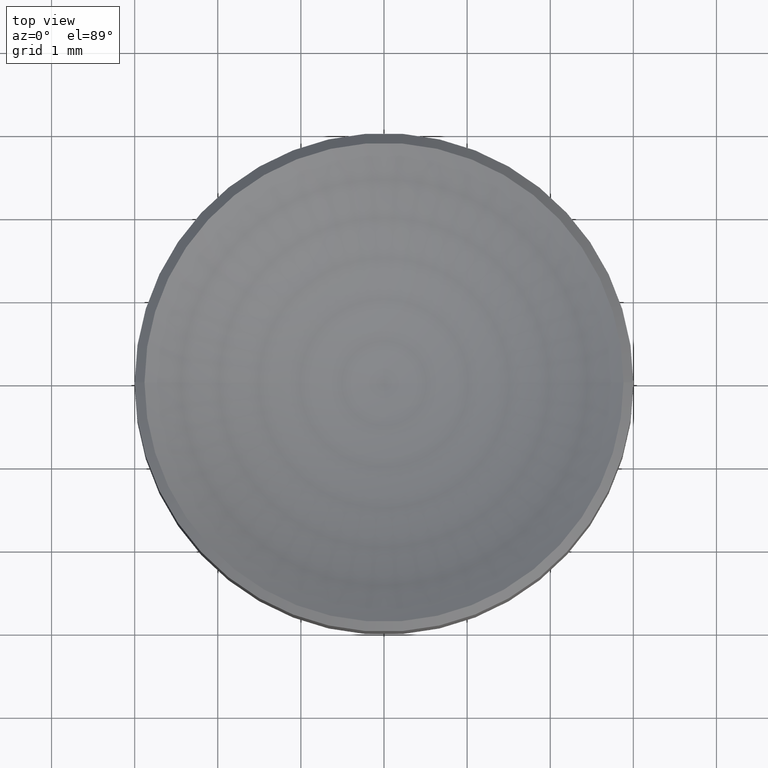
[diagram: clean part render]
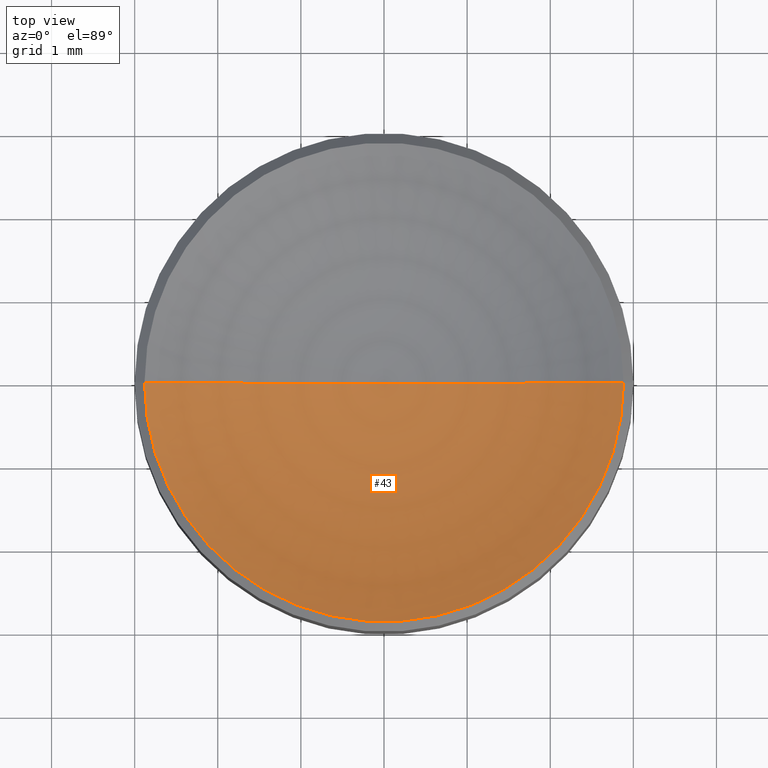
[diagram: same view with one face highlighted and labeled with its STEP entity id]
A machine part, top view. The second image highlights one B-rep face of the part: STEP entity #43.
In plain terms, the highlighted toroidal blend (fillet) surface has major radius 0.0008 mm and minor (blend) radius 5.17 mm.
Its self-contained STEP definition (entity closure, byte-faithful):
#5 = DIRECTION ( 'NONE',  ( -1.000000000000000000, 1.224646799147353207E-16, 0.000000000000000000 ) ) ;
#8 = ORIENTED_EDGE ( 'NONE', *, *, #196, .T. ) ;
#11 = ORIENTED_EDGE ( 'NONE', *, *, #208, .F. ) ;
#19 = CARTESIAN_POINT ( 'NONE',  ( 0.000000000000000000, 0.000000000000000000, 6.669999938107513238 ) ) ;
#23 = CIRCLE ( 'NONE', #160, 5.169999999999999929 ) ;
#43 = ADVANCED_FACE ( 'NONE', ( #62 ), #199, .F. ) ;
#55 = CARTESIAN_POINT ( 'NONE',  ( 0.000000000000000000, 0.000000000000000000, 2.378202045785374974 ) ) ;
#62 = FACE_OUTER_BOUND ( 'NONE', #166, .T. ) ;
#74 = CARTESIAN_POINT ( 'NONE',  ( 2.881797954214630142, 0.000000000000000000, 2.378202045785374974 ) ) ;
#78 = EDGE_CURVE ( 'NONE', #98, #124, #151, .T. ) ;
#79 = AXIS2_PLACEMENT_3D ( 'NONE', #19, #96, #101 ) ;
#80 = AXIS2_PLACEMENT_3D ( 'NONE', #55, #241, #258 ) ;
#86 = VERTEX_POINT ( 'NONE', #229 ) ;
#96 = DIRECTION ( 'NONE',  ( -0.000000000000000000, -0.000000000000000000, 1.000000000000000000 ) ) ;
#98 = VERTEX_POINT ( 'NONE', #219 ) ;
#101 = DIRECTION ( 'NONE',  ( 1.000000000000000000, 0.000000000000000000, 0.000000000000000000 ) ) ;
#115 = CARTESIAN_POINT ( 'NONE',  ( 0.0007999801944051383035, -9.796931844595300665E-20, 6.669999938107513238 ) ) ;
#118 = DIRECTION ( 'NONE',  ( 0.000000000000000000, 0.000000000000000000, -1.000000000000000000 ) ) ;
#124 = VERTEX_POINT ( 'NONE', #74 ) ;
#151 = CIRCLE ( 'NONE', #80, 2.881797954214628810 ) ;
#152 = DIRECTION ( 'NONE',  ( 1.224646799147353207E-16, 1.000000000000000000, 0.000000000000000000 ) ) ;
#160 = AXIS2_PLACEMENT_3D ( 'NONE', #115, #152, #5 ) ;
#161 = AXIS2_PLACEMENT_3D ( 'NONE', #256, #195, #118 ) ;
#166 = EDGE_LOOP ( 'NONE', ( #11, #8, #251 ) ) ;
#195 = DIRECTION ( 'NONE',  ( 0.000000000000000000, -1.000000000000000000, 0.000000000000000000 ) ) ;
#196 = EDGE_CURVE ( 'NONE', #86, #98, #23, .T. ) ;
#199 = TOROIDAL_SURFACE ( 'NONE', #79, -0.0007999801944051383035, 5.169999999999999929 ) ;
#203 = CIRCLE ( 'NONE', #161, 5.169999999999999929 ) ;
#208 = EDGE_CURVE ( 'NONE', #86, #124, #203, .T. ) ;
#219 = CARTESIAN_POINT ( 'NONE',  ( -2.881797954214630142, 3.529184640418337712E-16, 2.378202045785374974 ) ) ;
#229 = CARTESIAN_POINT ( 'NONE',  ( 0.000000000000000000, 0.000000000000000000, 1.500000000000000000 ) ) ;
#241 = DIRECTION ( 'NONE',  ( -0.000000000000000000, -0.000000000000000000, 1.000000000000000000 ) ) ;
#251 = ORIENTED_EDGE ( 'NONE', *, *, #78, .T. ) ;
#256 = CARTESIAN_POINT ( 'NONE',  ( -0.0007999801944051383035, 0.000000000000000000, 6.669999938107513238 ) ) ;
#258 = DIRECTION ( 'NONE',  ( 1.000000000000000000, 0.000000000000000000, 0.000000000000000000 ) ) ;